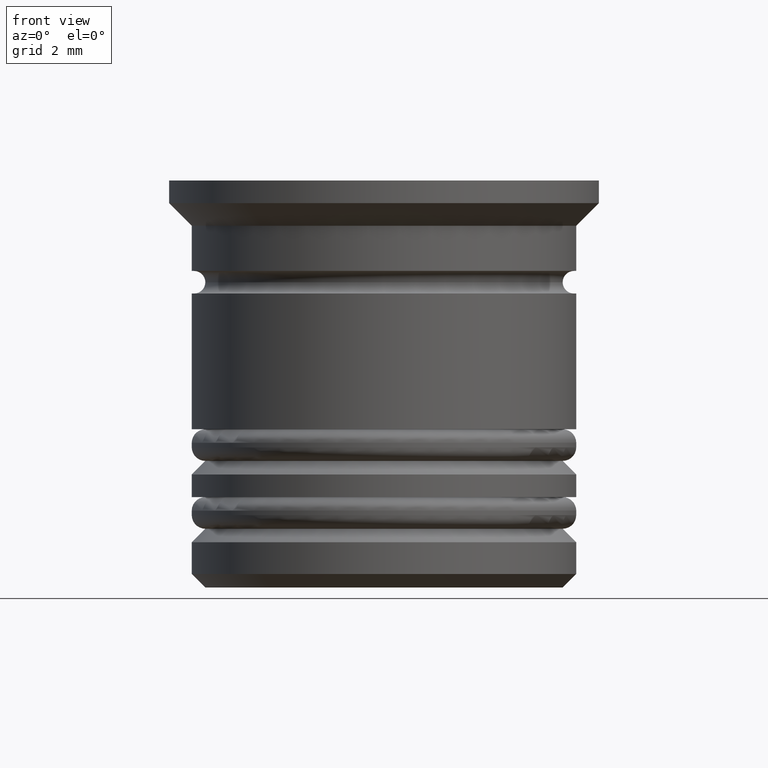
[diagram: clean part render]
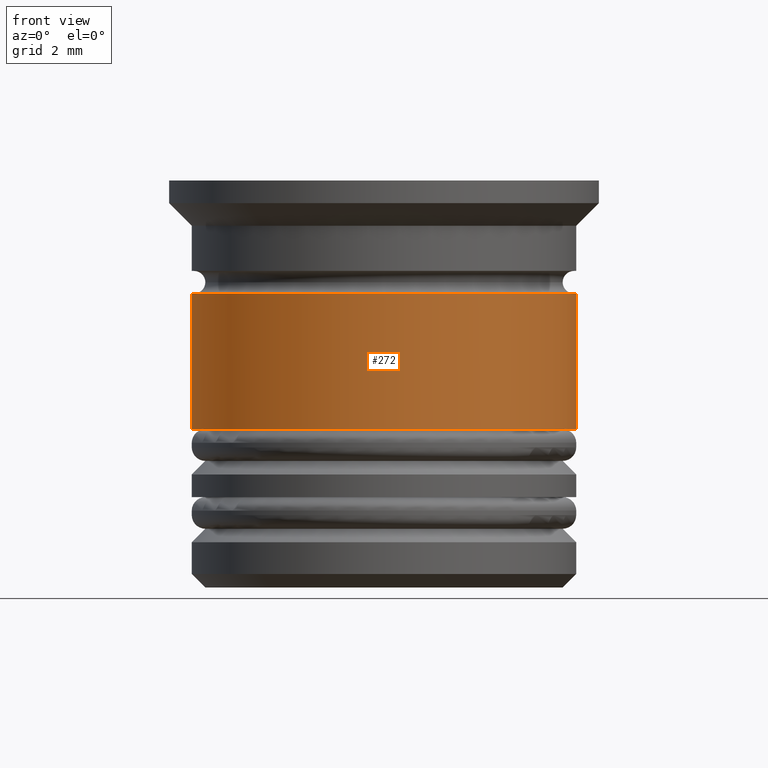
[diagram: same view with one face highlighted and labeled with its STEP entity id]
A machine part, front view. The second image highlights one B-rep face of the part: STEP entity #272.
In plain terms, the highlighted cylindrical surface (partial cylindrical patch) has radius 4.25 mm, axis along (-0, -0, 1).
Its self-contained STEP definition (entity closure, byte-faithful):
#89 = CARTESIAN_POINT ( 'NONE',  ( -4.250000000000000000, 5.204748896376250699E-16, 0.000000000000000000 ) ) ;
#105 = CARTESIAN_POINT ( 'NONE',  ( 0.000000000000000000, 0.000000000000000000, -2.499999999999998668 ) ) ;
#119 = VERTEX_POINT ( 'NONE', #1424 ) ;
#130 = DIRECTION ( 'NONE',  ( 1.000000000000000000, 0.000000000000000000, 0.000000000000000000 ) ) ;
#143 = DIRECTION ( 'NONE',  ( -0.000000000000000000, -0.000000000000000000, 1.000000000000000000 ) ) ;
#219 = CARTESIAN_POINT ( 'NONE',  ( -4.250000000000000000, 5.204748896376250699E-16, -5.500000000000000000 ) ) ;
#272 = ADVANCED_FACE ( 'NONE', ( #875 ), #274, .T. ) ;
#274 = CYLINDRICAL_SURFACE ( 'NONE', #1276, 4.250000000000000000 ) ;
#275 = VECTOR ( 'NONE', #143, 1000.000000000000000 ) ;
#280 = DIRECTION ( 'NONE',  ( -0.000000000000000000, -0.000000000000000000, 1.000000000000000000 ) ) ;
#336 = CARTESIAN_POINT ( 'NONE',  ( -4.250000000000000000, 5.204748896376250699E-16, -2.499999999999998668 ) ) ;
#486 = ORIENTED_EDGE ( 'NONE', *, *, #1905, .F. ) ;
#519 = EDGE_LOOP ( 'NONE', ( #1938, #738, #1915, #486 ) ) ;
#535 = VECTOR ( 'NONE', #1350, 1000.000000000000000 ) ;
#568 = DIRECTION ( 'NONE',  ( 1.000000000000000000, 0.000000000000000000, 0.000000000000000000 ) ) ;
#736 = CARTESIAN_POINT ( 'NONE',  ( 4.250000000000000000, 0.000000000000000000, 0.000000000000000000 ) ) ;
#738 = ORIENTED_EDGE ( 'NONE', *, *, #1494, .T. ) ;
#750 = EDGE_CURVE ( 'NONE', #1401, #1522, #1181, .T. ) ;
#771 = EDGE_CURVE ( 'NONE', #119, #1343, #1696, .T. ) ;
#874 = DIRECTION ( 'NONE',  ( -0.000000000000000000, -0.000000000000000000, 1.000000000000000000 ) ) ;
#875 = FACE_OUTER_BOUND ( 'NONE', #519, .T. ) ;
#906 = CARTESIAN_POINT ( 'NONE',  ( 0.000000000000000000, 0.000000000000000000, 0.000000000000000000 ) ) ;
#1085 = CARTESIAN_POINT ( 'NONE',  ( 4.250000000000000000, 0.000000000000000000, -2.499999999999998668 ) ) ;
#1181 = LINE ( 'NONE', #89, #535 ) ;
#1276 = AXIS2_PLACEMENT_3D ( 'NONE', #906, #1478, #568 ) ;
#1343 = VERTEX_POINT ( 'NONE', #1085 ) ;
#1350 = DIRECTION ( 'NONE',  ( -0.000000000000000000, -0.000000000000000000, 1.000000000000000000 ) ) ;
#1401 = VERTEX_POINT ( 'NONE', #219 ) ;
#1424 = CARTESIAN_POINT ( 'NONE',  ( 4.250000000000000000, 0.000000000000000000, -5.500000000000000000 ) ) ;
#1478 = DIRECTION ( 'NONE',  ( -0.000000000000000000, -0.000000000000000000, 1.000000000000000000 ) ) ;
#1487 = DIRECTION ( 'NONE',  ( 1.000000000000000000, 0.000000000000000000, 0.000000000000000000 ) ) ;
#1494 = EDGE_CURVE ( 'NONE', #1401, #119, #1744, .T. ) ;
#1522 = VERTEX_POINT ( 'NONE', #336 ) ;
#1682 = CARTESIAN_POINT ( 'NONE',  ( 0.000000000000000000, 0.000000000000000000, -5.500000000000000000 ) ) ;
#1696 = LINE ( 'NONE', #736, #275 ) ;
#1710 = CIRCLE ( 'NONE', #1878, 4.250000000000000000 ) ;
#1744 = CIRCLE ( 'NONE', #1875, 4.250000000000000000 ) ;
#1875 = AXIS2_PLACEMENT_3D ( 'NONE', #1682, #280, #130 ) ;
#1878 = AXIS2_PLACEMENT_3D ( 'NONE', #105, #874, #1487 ) ;
#1905 = EDGE_CURVE ( 'NONE', #1522, #1343, #1710, .T. ) ;
#1915 = ORIENTED_EDGE ( 'NONE', *, *, #771, .T. ) ;
#1938 = ORIENTED_EDGE ( 'NONE', *, *, #750, .F. ) ;